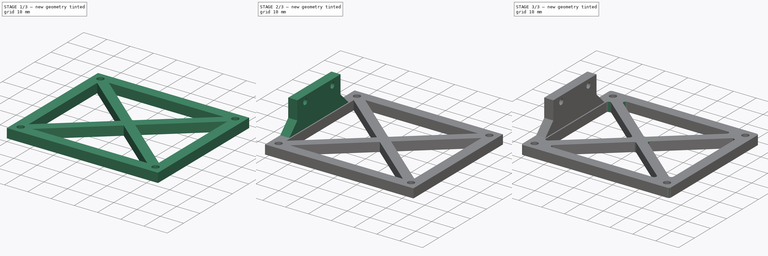
[diagram: build sequence overview — one tinted view per stage of 3, left to right]
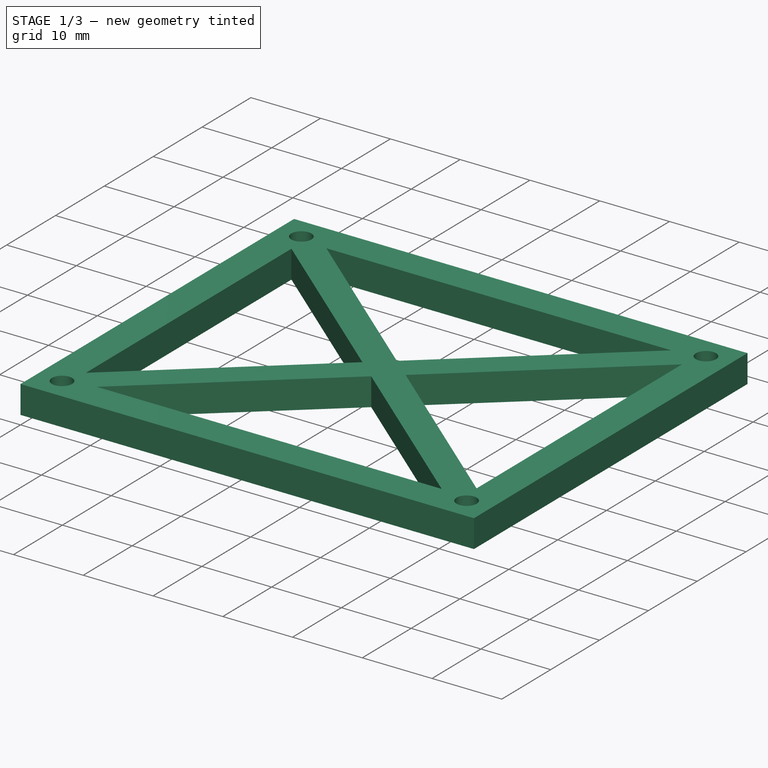
[diagram: stage 1 of 3 — iso view after this stage's code; geometry added in this stage tinted green]
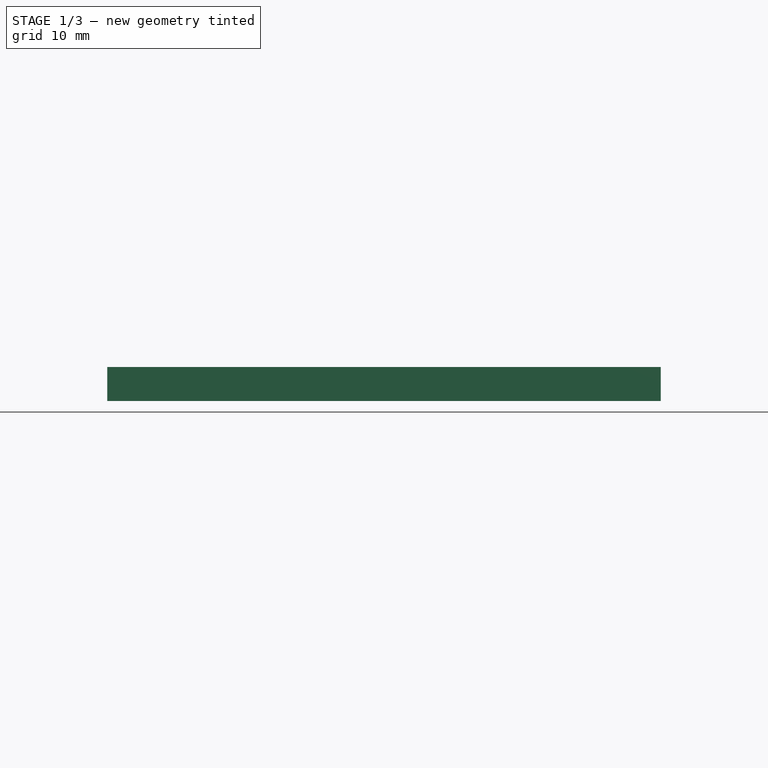
[diagram: stage 1 of 3 — front view after this stage's code; geometry added in this stage tinted green]
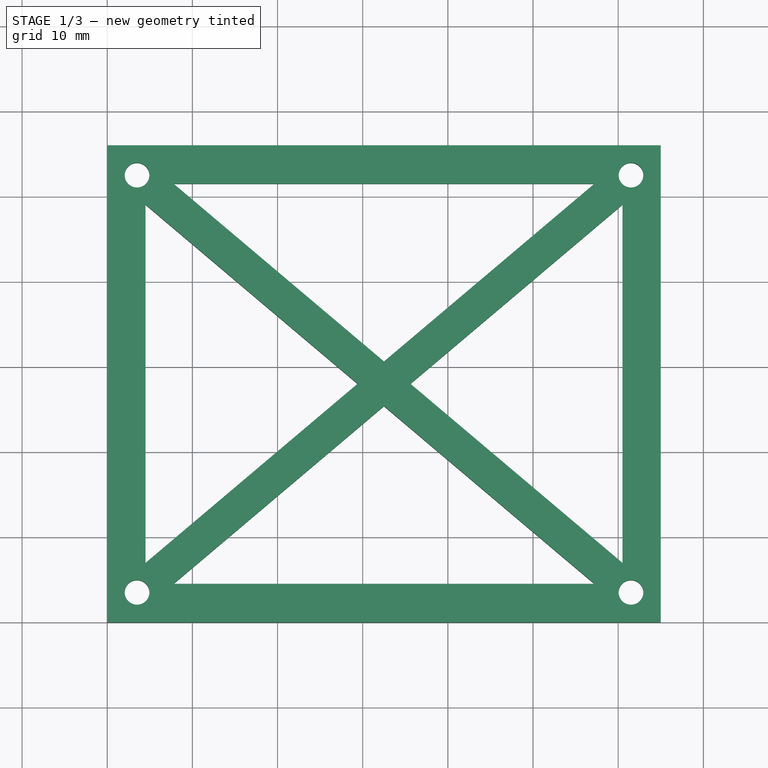
[diagram: stage 1 of 3 — top view after this stage's code; geometry added in this stage tinted green]
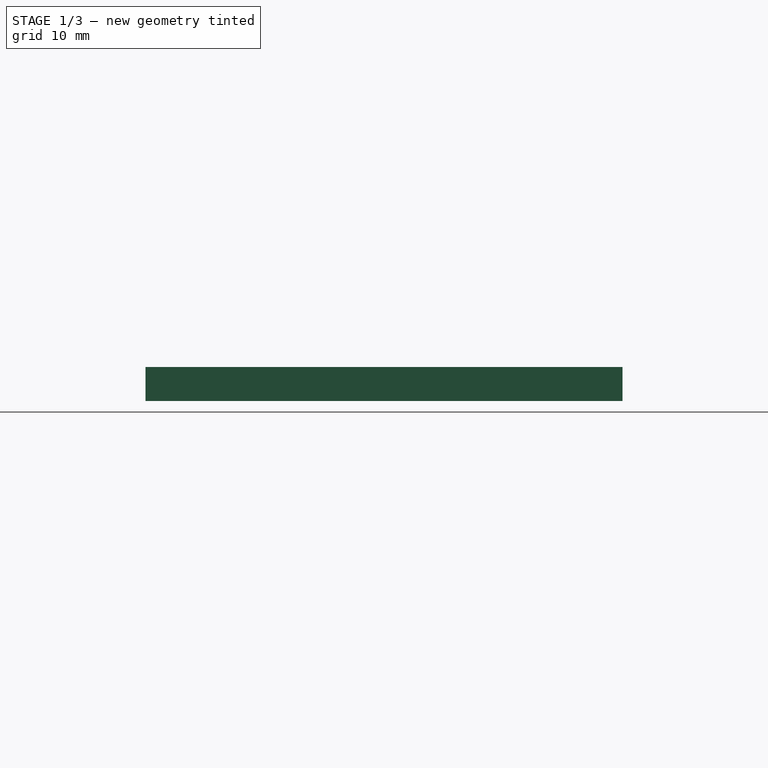
[diagram: stage 1 of 3 — right view after this stage's code; geometry added in this stage tinted green]
FCSTD DOCUMENT  (FreeCAD 0.18R16146 (Git))
Label: pi4BackMount
License: All rights reserved
LicenseURL: http://en.wikipedia.org/wiki/All_rights_reserved
objects: Sketcher::SketchObject×4, PartDesign::Pad×2, PartDesign::Pocket×2, PartDesign::Chamfer×2, PartDesign::Fillet×1, PartDesign::Body×1
note: 16 computed .brp shape members not serialized (recipe doc carries the construction recipe); baked Part::Feature solids carry a one-line shape summary decoded from their .brp

FEATURE [Sketcher::SketchObject] Sketch
  MapMode = 5
  Support = -> [XY_Plane]
  sketch-geometry (30):
    g0: LineSegment StartX=1.7e-15 StartY=56 StartZ=0 EndX=65 EndY=56 EndZ=0
    g1: LineSegment StartX=65 StartY=56 StartZ=0 EndX=65 EndY=0 EndZ=0
    g2: LineSegment StartX=65 StartY=0 StartZ=0 EndX=0 EndY=0 EndZ=0
    g3: LineSegment StartX=0 StartY=0 StartZ=0 EndX=1.7e-15 EndY=56 EndZ=0
    g4: LineSegment [constr] StartX=3.5 StartY=52.5 StartZ=0 EndX=61.5 EndY=52.5 EndZ=0
    g5: LineSegment [constr] StartX=61.5 StartY=52.5 StartZ=0 EndX=61.5 EndY=3.5 EndZ=0
    g6: LineSegment [constr] StartX=61.5 StartY=3.5 StartZ=0 EndX=3.5 EndY=3.5 EndZ=0
    g7: LineSegment [constr] StartX=3.5 StartY=3.5 StartZ=0 EndX=3.5 EndY=52.5 EndZ=0
    g8: LineSegment StartX=7.78276 StartY=51.5 StartZ=0 EndX=57.2172 EndY=51.5 EndZ=0
    g9: LineSegment StartX=60.5 StartY=49.037 StartZ=0 EndX=60.5 EndY=6.96302 EndZ=0
    g10: LineSegment StartX=57.2172 StartY=4.5 StartZ=0 EndX=7.78276 EndY=4.5 EndZ=0
    g11: LineSegment StartX=4.5 StartY=6.96302 StartZ=0 EndX=4.5 EndY=49.037 EndZ=0
    g12: LineSegment [constr] StartX=3.5 StartY=52.5 StartZ=0 EndX=61.5 EndY=3.5 EndZ=0
    g13: LineSegment [constr] StartX=3.5 StartY=3.5 StartZ=0 EndX=61.5 EndY=52.5 EndZ=0
    g14: LineSegment [constr] StartX=32.5 StartY=28 StartZ=0 EndX=32.5 EndY=51.5 EndZ=0
    g15: LineSegment StartX=7.78276 StartY=51.5 StartZ=0 EndX=32.5 EndY=30.6182 EndZ=0
    g16: LineSegment StartX=32.5 StartY=30.6182 StartZ=0 EndX=57.2172 EndY=51.5 EndZ=0
    g17: LineSegment [constr] StartX=32.5 StartY=28 StartZ=0 EndX=4.5 EndY=28 EndZ=0
    g18: LineSegment [constr] StartX=32.5 StartY=28 StartZ=0 EndX=32.5 EndY=4.5 EndZ=0
    g19: LineSegment [constr] StartX=32.5 StartY=28 StartZ=0 EndX=60.5 EndY=28 EndZ=0
    g20: LineSegment StartX=4.5 StartY=49.037 StartZ=0 EndX=29.4009 EndY=28 EndZ=0
    g21: LineSegment StartX=29.4009 StartY=28 StartZ=0 EndX=4.5 EndY=6.96302 EndZ=0
    g22: LineSegment StartX=35.5991 StartY=28 StartZ=0 EndX=60.5 EndY=49.037 EndZ=0
    g23: LineSegment StartX=32.5 StartY=25.3818 StartZ=0 EndX=7.78276 EndY=4.5 EndZ=0
    g24: LineSegment StartX=32.5 StartY=25.3818 StartZ=0 EndX=57.2172 EndY=4.5 EndZ=0
    g25: LineSegment StartX=35.5991 StartY=28 StartZ=0 EndX=60.5 EndY=6.96302 EndZ=0
    g26: Circle CenterX=3.5 CenterY=52.5 CenterZ=0 NormalX=0 NormalY=0 NormalZ=1 AngleXU=0 Radius=1.45
    g27: Circle CenterX=61.5 CenterY=52.5 CenterZ=0 NormalX=0 NormalY=0 NormalZ=1 AngleXU=0 Radius=1.45
    g28: Circle CenterX=3.5 CenterY=3.5 CenterZ=0 NormalX=0 NormalY=0 NormalZ=1 AngleXU=0 Radius=1.45
    g29: Circle CenterX=61.5 CenterY=3.5 CenterZ=0 NormalX=0 NormalY=0 NormalZ=1 AngleXU=0 Radius=1.45
  constraints (84):
    c: Coincident(g0,g1)
    c: Coincident(g3,g0)
    c: Horizontal(g0)
    c: Horizontal(g2)
    c: Vertical(g1)
    c: Distance(g0) = 65
    c: Coincident(g4,g5)
    c: Coincident(g5,g6)
    c: Coincident(g6,g7)
    c: Coincident(g7,g4)
    c: Horizontal(g4)
    c: Horizontal(g6)
    c: Vertical(g5)
    c: Vertical(g7)
    c: Distance(g4) = 58
    c: Distance(g5) = 49
    c: Distance(g4,g3) = 3.5
    c: Horizontal(g8)
    c: Horizontal(g10)
    c: Vertical(g9)
    c: Vertical(g11)
    c: PointOnObject(g14,g13)
    c: PointOnObject(g14,g8)
    c: Vertical(g14)
    c: Distance(g4,g0) = 3.5
    c: PointOnObject(g14,g12)
    c: PointOnObject(g15,g14)
    c: Parallel(g15,g12)
    c: Distance(g15,g12) = 2
    c: Coincident(g16,g15)
    c: Parallel(g16,g13)
    c: Coincident(g17,g14)
    c: PointOnObject(g17,g11)
    c: Horizontal(g17)
    c: PointOnObject(g18,g10)
    c: Vertical(g18)
    c: Coincident(g18,g14)
    c: PointOnObject(g19,g9)
    c: Horizontal(g19)
    c: Coincident(g19,g14)
    c: PointOnObject(g20,g17)
    c: Parallel(g20,g12)
    c: Distance(g20,g12) = 2
    c: Coincident(g21,g20)
    c: Parallel(g21,g13)
    c: Parallel(g23,g13)
    c: PointOnObject(g23,g18)
    c: Distance(g23,g13) = 2
    c: Parallel(g22,g13)
    c: PointOnObject(g22,g19)
    c: Distance(g22,g13) = 2
    c: Coincident(g24,g23)
    c: Coincident(g25,g22)
    c: Parallel(g25,g12)
    c: Parallel(g24,g12)
    c: Coincident(g8,g15)
    c: Coincident(g11,g20)
    c: Distance(g8,g4) = 1
    c: Coincident(g8,g16)
    c: Coincident(g9,g22)
    c: Coincident(g10,g24)
    c: Coincident(g9,g25)
    c: Coincident(g10,g23)
    c: Coincident(g11,g21)
    c: Coincident(g13,g4)
    c: Coincident(g13,g6)
    c: Coincident(g12,g5)
    c: Distance(g10,g6) = 1
    c: Coincident(g12,g4)
    c: Distance(g11,g7) = 1
    c: Distance(g9,g5) = 1
    c: Coincident(g26,g4)
    c: Radius(g26) = 1.45
    c: Equal(g26,g27) = 1.25
    c: Coincident(g27,g4)
    c: Equal(g26,g28) = 1.25
    c: Coincident(g28,g6)
    c: Equal(g26,g29) = 1.25
    c: Coincident(g29,g5)
    c: Distance(g29,g2) = 3.5
    c: Coincident(g1,g2)
    c: Equal(g0,g2)
    c: Coincident(g3,g2)
    c: Coincident(g2,g-1)
FEATURE [PartDesign::Pad] Pad
  Length = 4
  Length2 = 100
  Profile = -> Sketch
  Type = 0
FEATURE [Sketcher::SketchObject] Sketch002
  MapMode = 5
  Placement = pos=(-1.55844,1.84468,0) rot=(-0.250463,0.684569,0.684569;3.63242rad)
  sketch-geometry (5):
    g0: Circle CenterX=-21.5 CenterY=5.25 CenterZ=0 NormalX=0 NormalY=0 NormalZ=1 AngleXU=0 Radius=1.25
    g1: LineSegment [constr] StartX=-21.5 StartY=5.25 StartZ=0 EndX=-4.5 EndY=5.25 EndZ=0
    g2: LineSegment [constr] StartX=-13 StartY=8 StartZ=0 EndX=-13 EndY=0 EndZ=0
    g3: Circle CenterX=-4.5 CenterY=5.25 CenterZ=0 NormalX=0 NormalY=0 NormalZ=1 AngleXU=0 Radius=1.25
    g4: LineSegment [constr] StartX=-21.5 StartY=5.25 StartZ=0 EndX=-21.5 EndY=4 EndZ=0
  constraints (10):
    c: Radius(g0) = 1.25
    c: Coincident(g1,g0)
    c: Distance(g1) = 17
    c: PointOnObject(g2,g-1)
    c: Symmetric(g0,g1,g2)
    c: Equal(g0,g3) = 1.25
    c: Coincident(g3,g1)
    c: Coincident(g4,g0)
    c: PointOnObject(g4,g0)
    c: Vertical(g4)
FEATURE [PartDesign::Pocket] Pocket
  BaseFeature = -> Pad
  Length = 5
  Length2 = 100
  Profile = -> Sketch002
  Type = 0
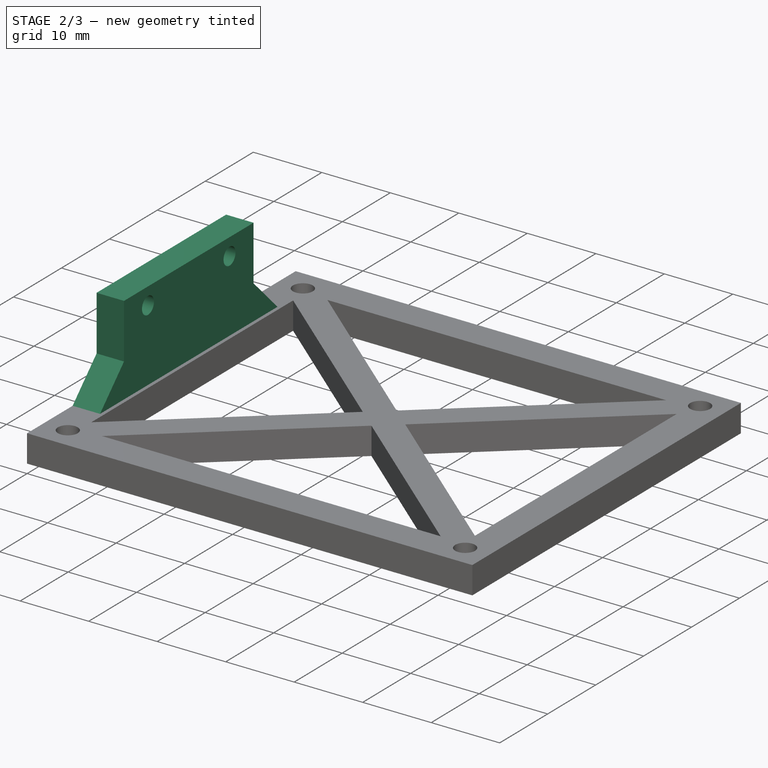
[diagram: stage 2 of 3 — iso view after this stage's code; geometry added in this stage tinted green]
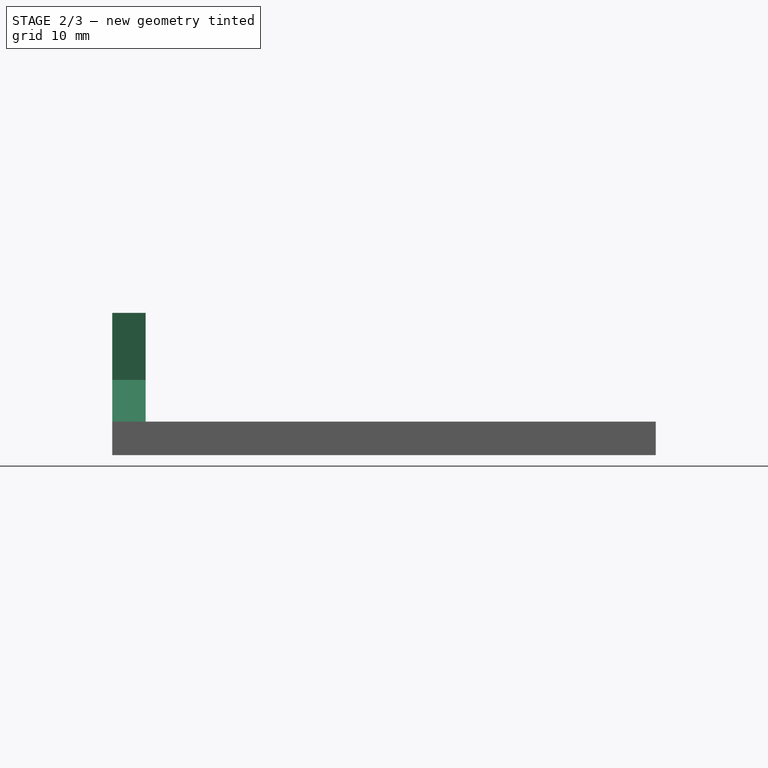
[diagram: stage 2 of 3 — front view after this stage's code; geometry added in this stage tinted green]
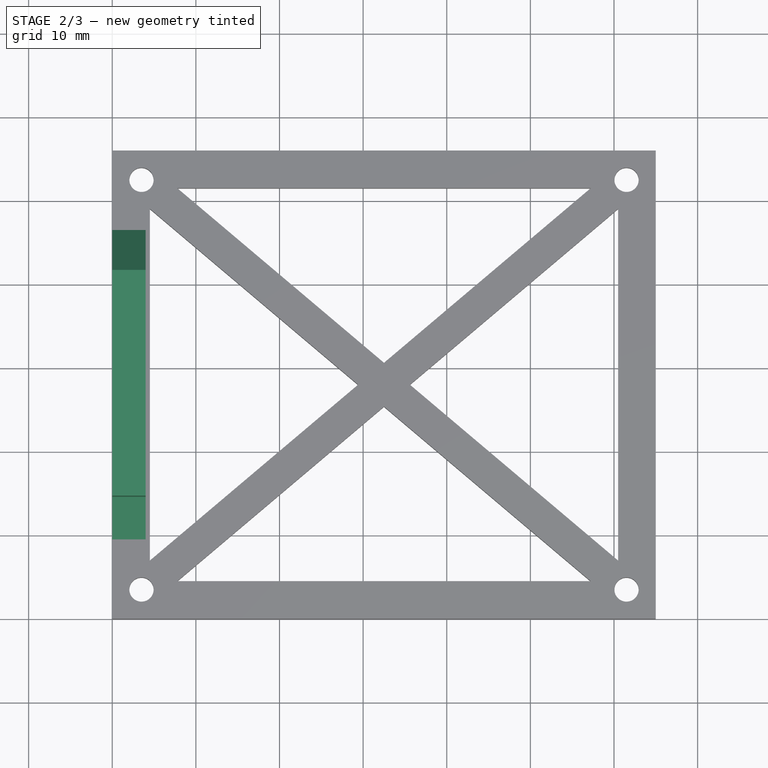
[diagram: stage 2 of 3 — top view after this stage's code; geometry added in this stage tinted green]
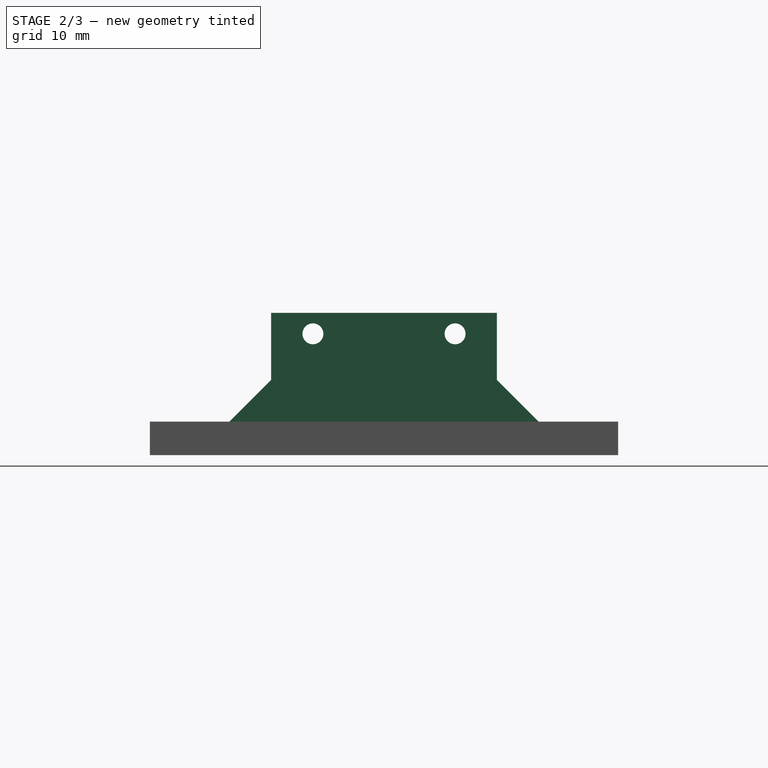
[diagram: stage 2 of 3 — right view after this stage's code; geometry added in this stage tinted green]
FEATURE [Sketcher::SketchObject] Sketch003
  ExternalGeometry = -> [Pocket]
  MapMode = 5
  Placement = pos=(0,0,4) rot=(0,0,1;0rad)
  Support = -> [Pocket]
  sketch-geometry (5):
    g0: LineSegment StartX=9e-16 StartY=41.5 StartZ=0 EndX=4 EndY=41.5 EndZ=0
    g1: LineSegment StartX=4 StartY=41.5 StartZ=0 EndX=4 EndY=14.5 EndZ=0
    g2: LineSegment StartX=4 StartY=14.5 StartZ=0 EndX=9e-16 EndY=14.5 EndZ=0
    g3: LineSegment StartX=9e-16 StartY=14.5 StartZ=0 EndX=9e-16 EndY=41.5 EndZ=0
    g4: LineSegment [constr] StartX=9e-16 StartY=28 StartZ=0 EndX=4 EndY=28 EndZ=0
  constraints (14):
    c: Coincident(g0,g1)
    c: Coincident(g1,g2)
    c: Coincident(g2,g3)
    c: Coincident(g3,g0)
    c: Horizontal(g0)
    c: Horizontal(g2)
    c: Vertical(g1)
    c: Vertical(g3)
    c: Distance(g0) = 4
    c: PointOnObject(g4,g1)
    c: Horizontal(g4)
    c: Symmetric(g-3,g-1,g4)
    c: Symmetric(g0,g2,g4)
    c: Distance(g1) = 27
FEATURE [PartDesign::Pad] Pad001
  BaseFeature = -> Pocket
  Length = 13
  Length2 = 100
  Profile = -> Sketch003
  Type = 0
FEATURE [Sketcher::SketchObject] Sketch004
  ExternalGeometry = -> [Pad001]
  MapMode = 5
  Placement = pos=(9e-16,0,0) rot=(0.57735,-0.57735,-0.57735;2.0944rad)
  Support = -> [Pad001]
  sketch-geometry (4):
    g0: LineSegment [constr] StartX=-36.5 StartY=14.5 StartZ=0 EndX=-19.5 EndY=14.5 EndZ=0
    g1: LineSegment [constr] StartX=-28 StartY=17 StartZ=0 EndX=-28 EndY=14.5 EndZ=0
    g2: Circle CenterX=-36.5 CenterY=14.5 CenterZ=0 NormalX=0 NormalY=0 NormalZ=1 AngleXU=0 Radius=1.25
    g3: Circle CenterX=-19.5 CenterY=14.5 CenterZ=0 NormalX=0 NormalY=0 NormalZ=1 AngleXU=0 Radius=1.25
  constraints (10):
    c: Horizontal(g0)
    c: Distance(g0) = 17
    c: Vertical(g1)
    c: Symmetric(g-3,g-3,g1)
    c: Symmetric(g0,g0,g1)
    c: Distance(g1) = 2.5
    c: Coincident(g2,g0)
    c: Radius(g2) = 1.25
    c: Equal(g2,g3) = 1.25
    c: Coincident(g3,g0)
FEATURE [PartDesign::Pocket] Pocket001
  BaseFeature = -> Pad001
  Length = 5
  Length2 = 100
  Profile = -> Sketch004
  Type = 1
FEATURE [PartDesign::Chamfer] Chamfer
  Base = -> Pocket001 [Edge30,Edge32]
  BaseFeature = -> Pocket001
  Size = 5
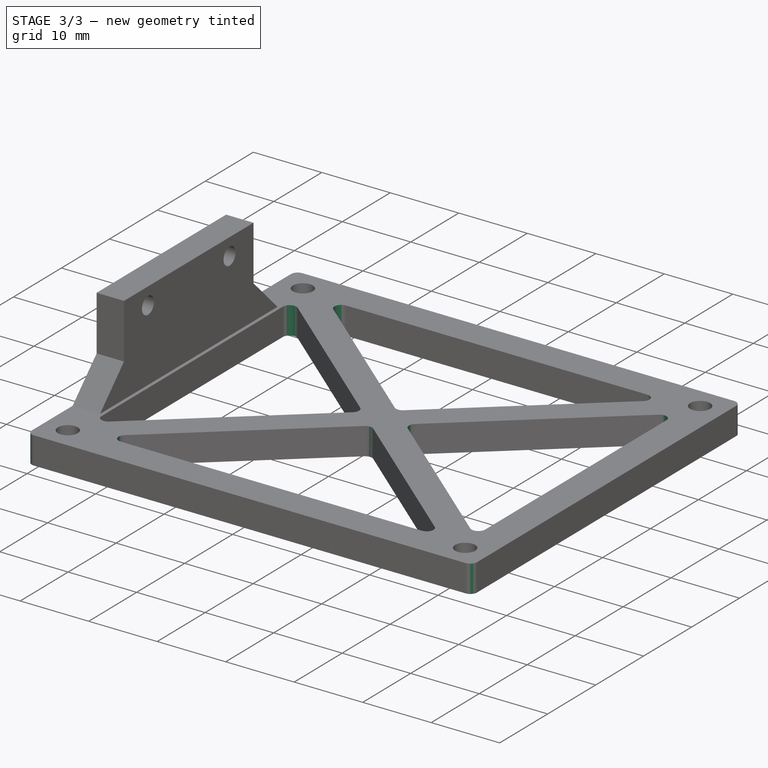
[diagram: stage 3 of 3 — iso view after this stage's code; geometry added in this stage tinted green]
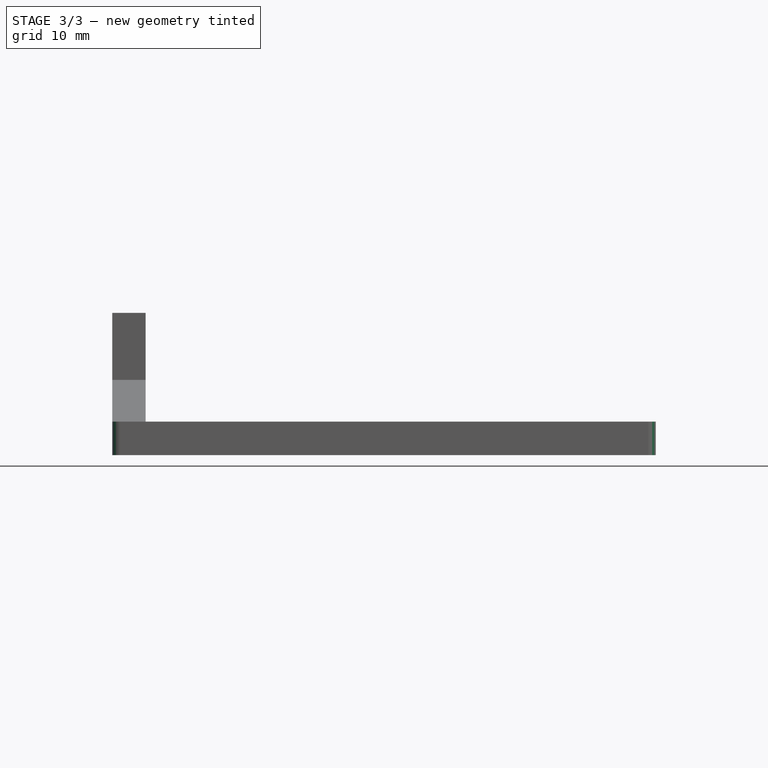
[diagram: stage 3 of 3 — front view after this stage's code; geometry added in this stage tinted green]
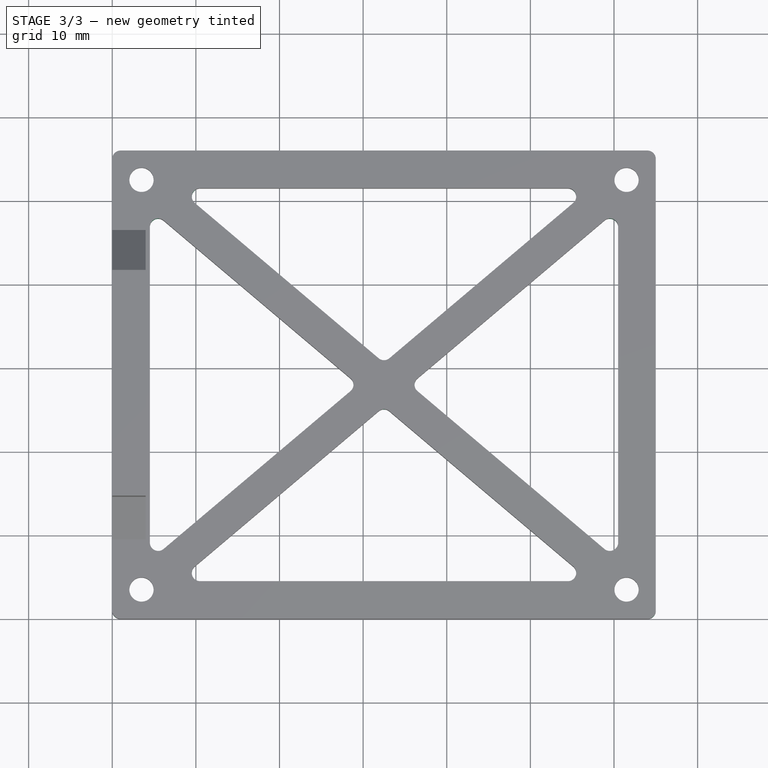
[diagram: stage 3 of 3 — top view after this stage's code; geometry added in this stage tinted green]
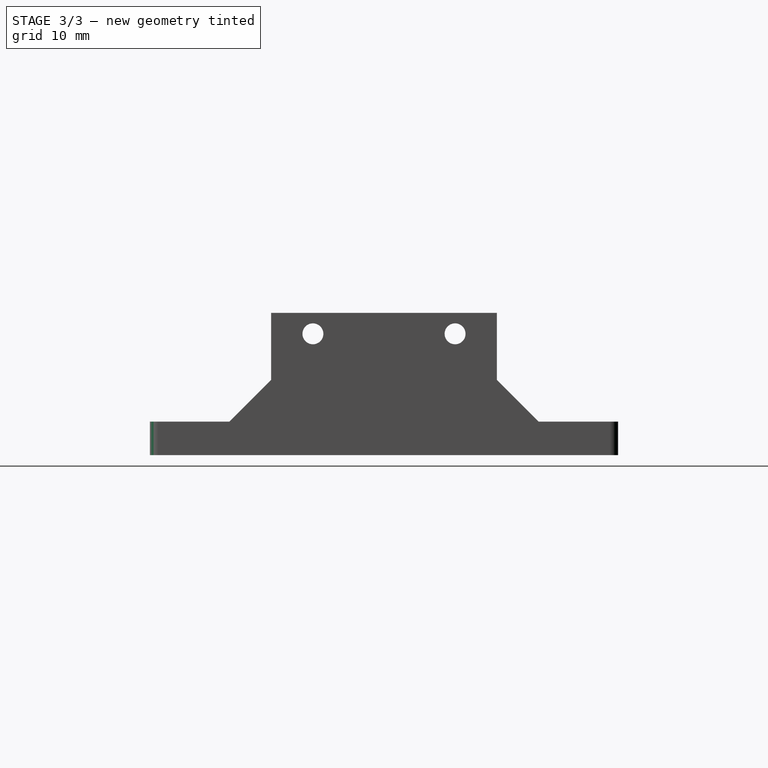
[diagram: stage 3 of 3 — right view after this stage's code; geometry added in this stage tinted green]
FEATURE [PartDesign::Fillet] Fillet
  Base = -> Chamfer [Edge88,Edge82,Edge83,Edge80,Edge79,Edge90,Edge91,Edge87,Edge81,Edge78,Edge89,Edge86,Edge84,Edge7,Edge67,Edge47,Edge3]
  BaseFeature = -> Chamfer
  Radius = 1
FEATURE [PartDesign::Chamfer] Chamfer001
  Base = -> Fillet [Edge73,Edge74,Edge72,Edge71]
  BaseFeature = -> Fillet
  Size = 1
FEATURE [PartDesign::Body] Body
  Group = -> [Sketch,Pad,Sketch002,Pocket,Sketch003,Pad001,Sketch004,Pocket001,Chamfer,Fillet,Chamfer001]
  Origin = -> Origin
  Tip = -> Chamfer001
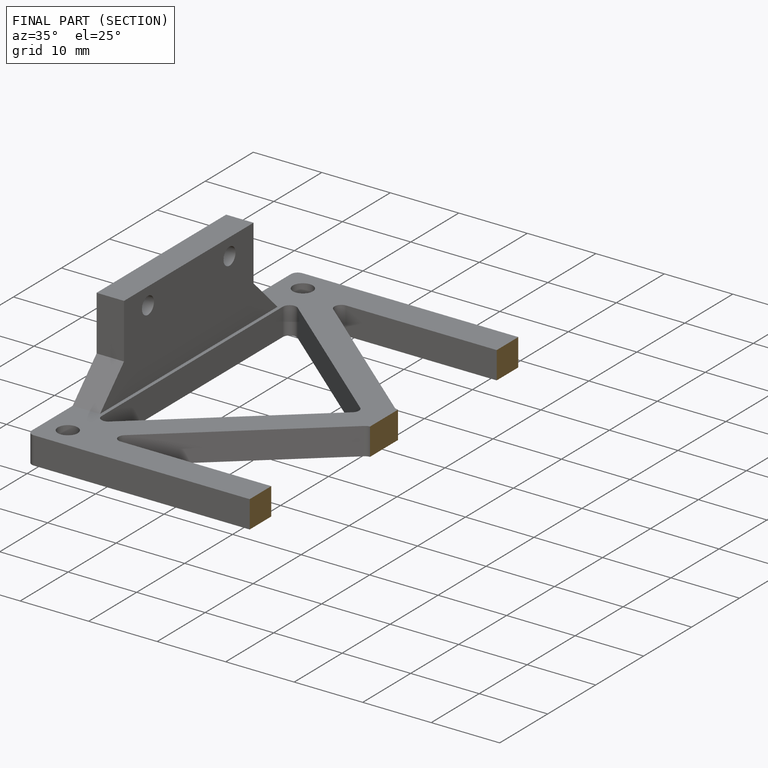
[diagram: finished part — half-section view (interior)]
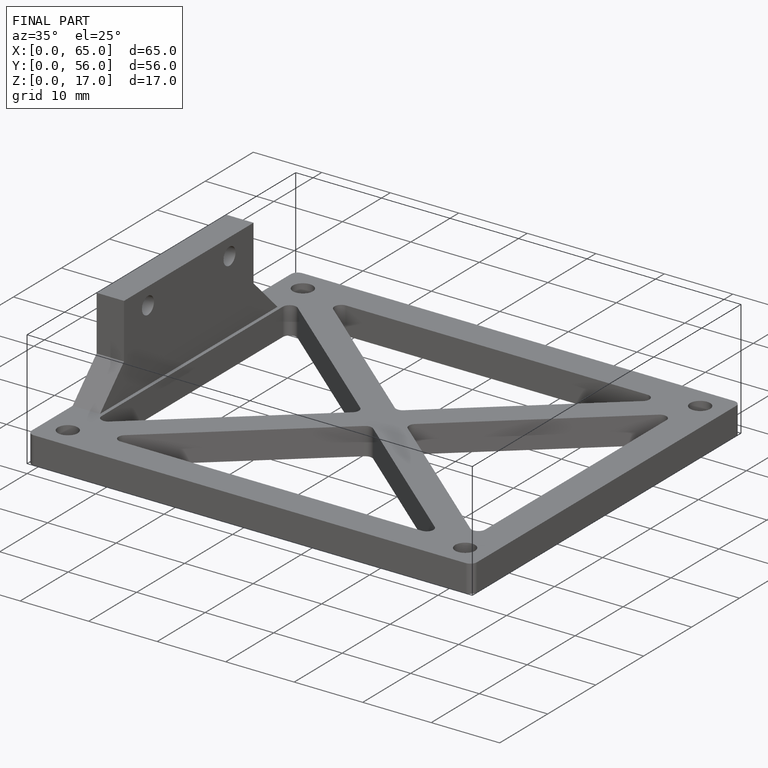
[diagram: finished part — iso view with bounding-box wireframe]
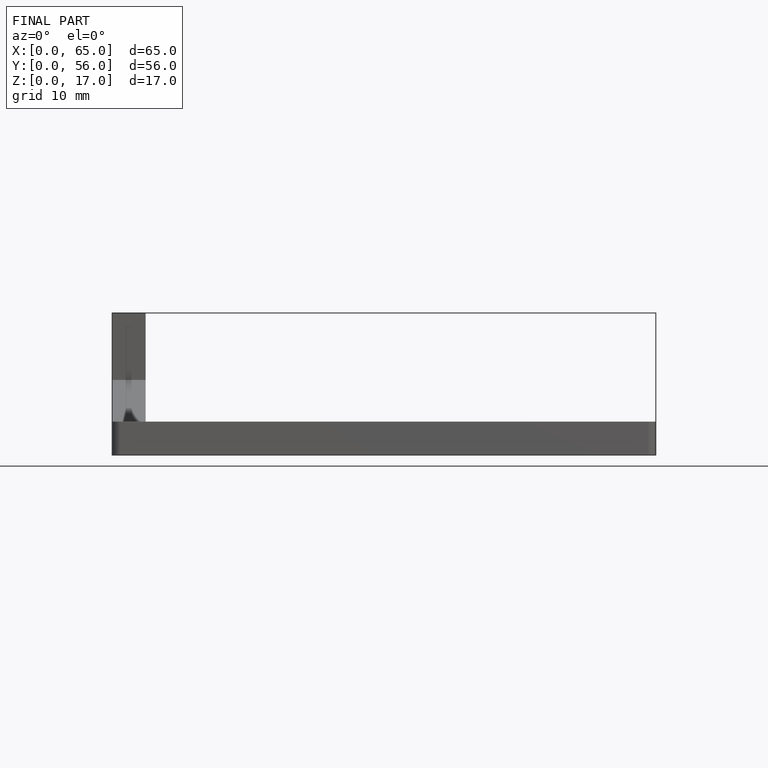
[diagram: finished part — front view with bounding-box wireframe]
